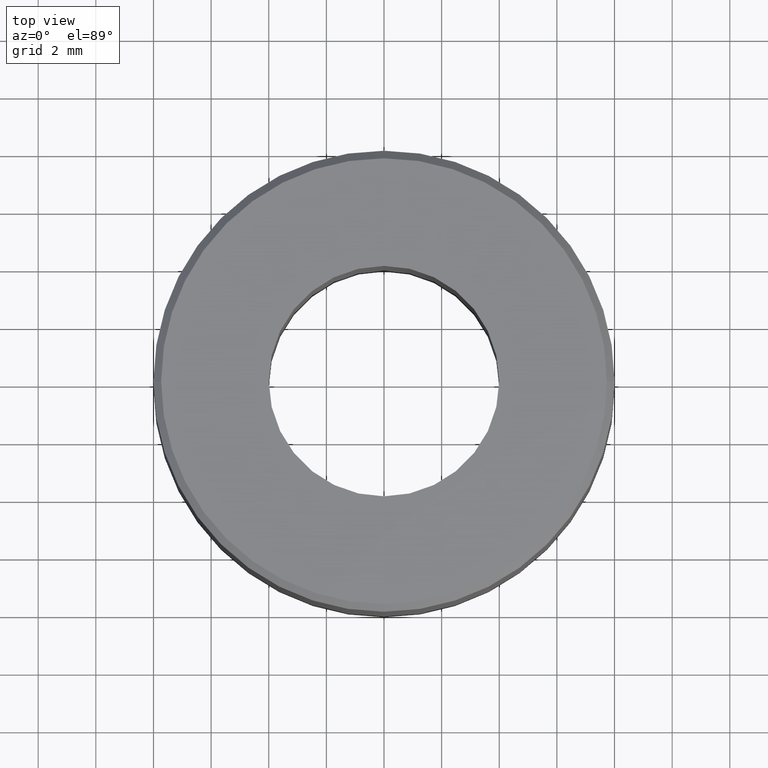
[diagram: clean part render]
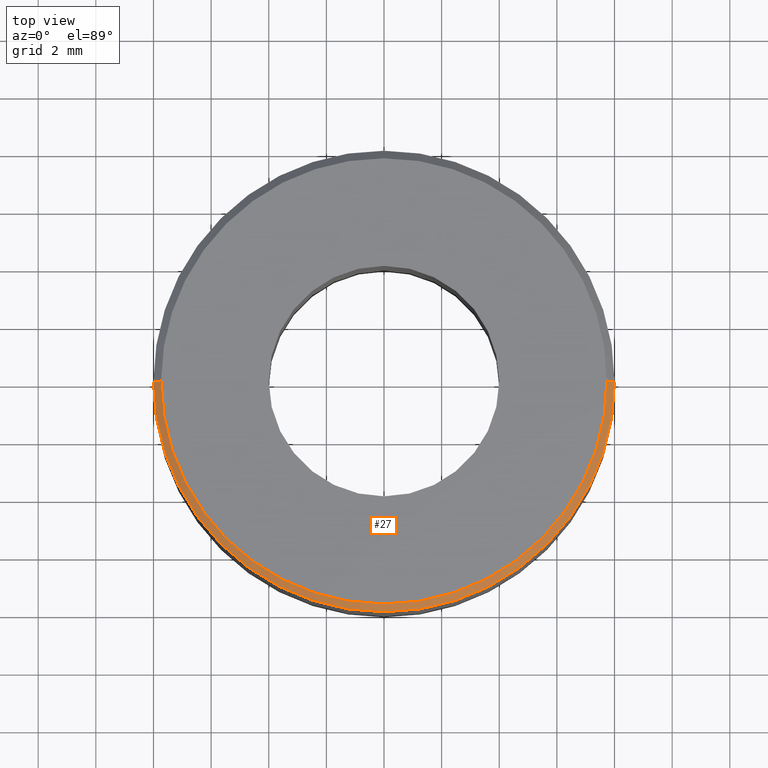
[diagram: same view with one face highlighted and labeled with its STEP entity id]
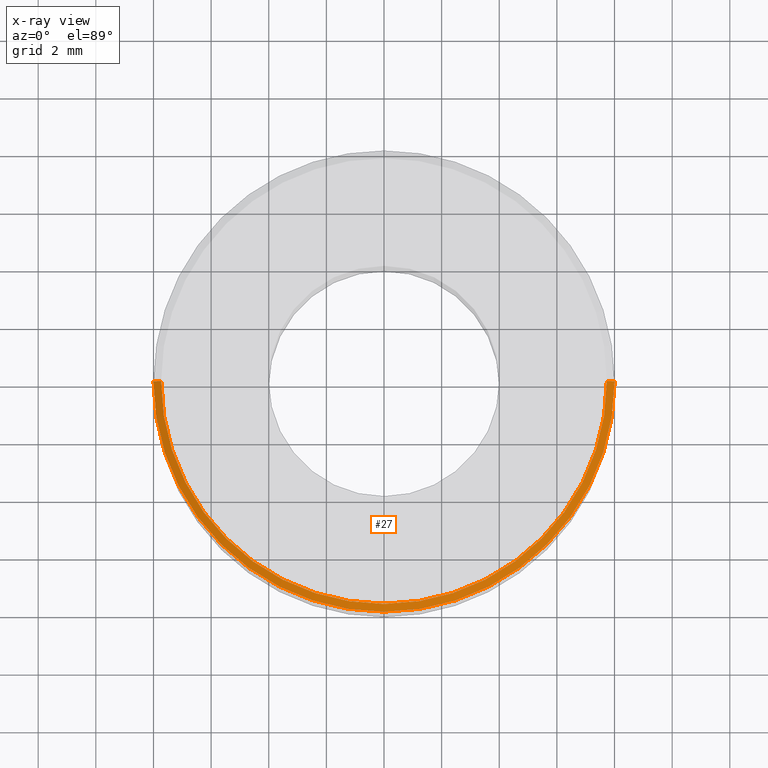
[diagram: x-ray of the same camera — body ghosted, the highlighted face saturated]
A machine part, top view. The second image highlights one B-rep face of the part: STEP entity #27.
The next image is the same camera in x-ray: the body ghosted, the highlighted face saturated — about 0% of this face is hidden behind the body in this view.
In plain terms, the highlighted conical surface has half-angle 45 deg.
Its self-contained STEP definition (entity closure, byte-faithful):
#24 = CARTESIAN_POINT ( 'NONE',  ( 7.734513274336237000, 9.634610658778705300E-016, 11.49999999999980300 ) ) ;
#27 = ADVANCED_FACE ( 'NONE', ( #188 ), #60, .T. ) ;
#32 = ORIENTED_EDGE ( 'NONE', *, *, #127, .F. ) ;
#60 = CONICAL_SURFACE ( 'NONE', #312, 8.000000000000000000, 0.7853981633974401700 ) ;
#62 = VERTEX_POINT ( 'NONE', #24 ) ;
#82 = ORIENTED_EDGE ( 'NONE', *, *, #268, .F. ) ;
#90 = AXIS2_PLACEMENT_3D ( 'NONE', #247, #196, #243 ) ;
#97 = CARTESIAN_POINT ( 'NONE',  ( 0.0000000000000000000, 0.0000000000000000000, 11.49999999999980300 ) ) ;
#125 = VECTOR ( 'NONE', #220, 1000.000000000000000 ) ;
#127 = EDGE_CURVE ( 'NONE', #310, #62, #316, .T. ) ;
#161 = VECTOR ( 'NONE', #288, 1000.000000000000000 ) ;
#163 = CARTESIAN_POINT ( 'NONE',  ( 8.000000000000000000, 9.797174393178825700E-016, 11.23451327433603500 ) ) ;
#165 = VERTEX_POINT ( 'NONE', #336 ) ;
#172 = DIRECTION ( 'NONE',  ( -1.000000000000000000, 0.0000000000000000000, 0.0000000000000000000 ) ) ;
#186 = DIRECTION ( 'NONE',  ( -0.0000000000000000000, -0.0000000000000000000, 1.000000000000000000 ) ) ;
#188 = FACE_OUTER_BOUND ( 'NONE', #345, .T. ) ;
#195 = CIRCLE ( 'NONE', #90, 8.000000000000000000 ) ;
#196 = DIRECTION ( 'NONE',  ( -0.0000000000000000000, -0.0000000000000000000, 1.000000000000000000 ) ) ;
#199 = EDGE_CURVE ( 'NONE', #310, #165, #321, .T. ) ;
#206 = LINE ( 'NONE', #163, #125 ) ;
#214 = CARTESIAN_POINT ( 'NONE',  ( -8.000000000000000000, 0.0000000000000000000, 11.23451327433603500 ) ) ;
#215 = VERTEX_POINT ( 'NONE', #241 ) ;
#216 = AXIS2_PLACEMENT_3D ( 'NONE', #97, #186, #287 ) ;
#220 = DIRECTION ( 'NONE',  ( 0.7071067811865418000, 8.659560562354862600E-017, -0.7071067811865532300 ) ) ;
#239 = EDGE_CURVE ( 'NONE', #165, #215, #195, .T. ) ;
#241 = CARTESIAN_POINT ( 'NONE',  ( 8.000000000000000000, 0.0000000000000000000, 11.23451327433603500 ) ) ;
#243 = DIRECTION ( 'NONE',  ( 1.000000000000000000, 0.0000000000000000000, 0.0000000000000000000 ) ) ;
#247 = CARTESIAN_POINT ( 'NONE',  ( 0.0000000000000000000, 0.0000000000000000000, 11.23451327433603500 ) ) ;
#268 = EDGE_CURVE ( 'NONE', #62, #215, #206, .T. ) ;
#287 = DIRECTION ( 'NONE',  ( 1.000000000000000000, 0.0000000000000000000, 0.0000000000000000000 ) ) ;
#288 = DIRECTION ( 'NONE',  ( -0.7071067811865418000, 0.0000000000000000000, -0.7071067811865532300 ) ) ;
#289 = CARTESIAN_POINT ( 'NONE',  ( -7.734513274336237000, 0.0000000000000000000, 11.49999999999980300 ) ) ;
#304 = DIRECTION ( 'NONE',  ( 0.0000000000000000000, 0.0000000000000000000, -1.000000000000000000 ) ) ;
#310 = VERTEX_POINT ( 'NONE', #289 ) ;
#312 = AXIS2_PLACEMENT_3D ( 'NONE', #347, #304, #172 ) ;
#316 = CIRCLE ( 'NONE', #216, 7.734513274336237000 ) ;
#321 = LINE ( 'NONE', #214, #161 ) ;
#333 = ORIENTED_EDGE ( 'NONE', *, *, #199, .T. ) ;
#336 = CARTESIAN_POINT ( 'NONE',  ( -8.000000000000000000, 9.797174393178825700E-016, 11.23451327433603500 ) ) ;
#345 = EDGE_LOOP ( 'NONE', ( #82, #32, #333, #346 ) ) ;
#346 = ORIENTED_EDGE ( 'NONE', *, *, #239, .T. ) ;
#347 = CARTESIAN_POINT ( 'NONE',  ( 0.0000000000000000000, 0.0000000000000000000, 11.23451327433603500 ) ) ;